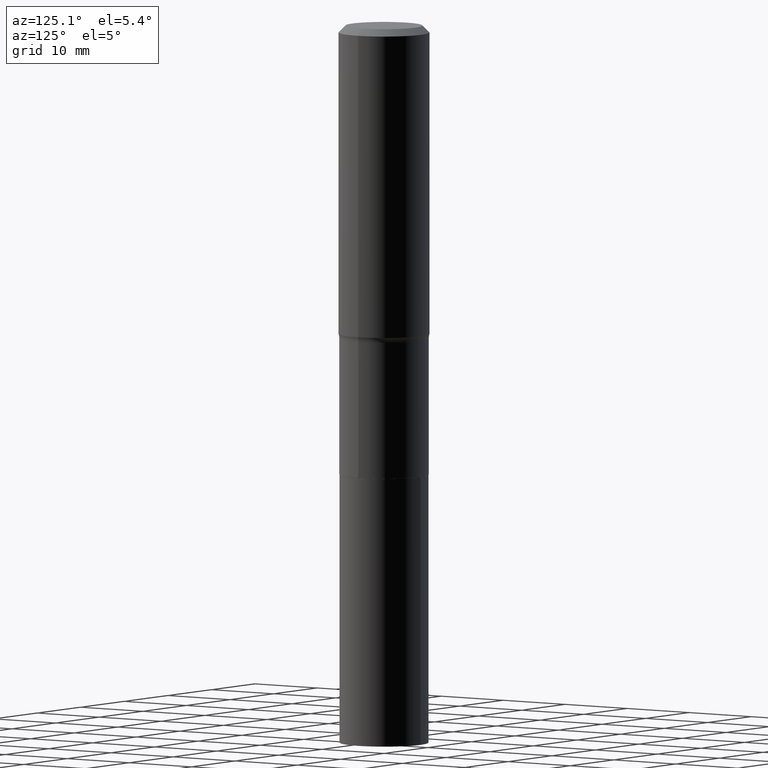
[diagram: clean part render]
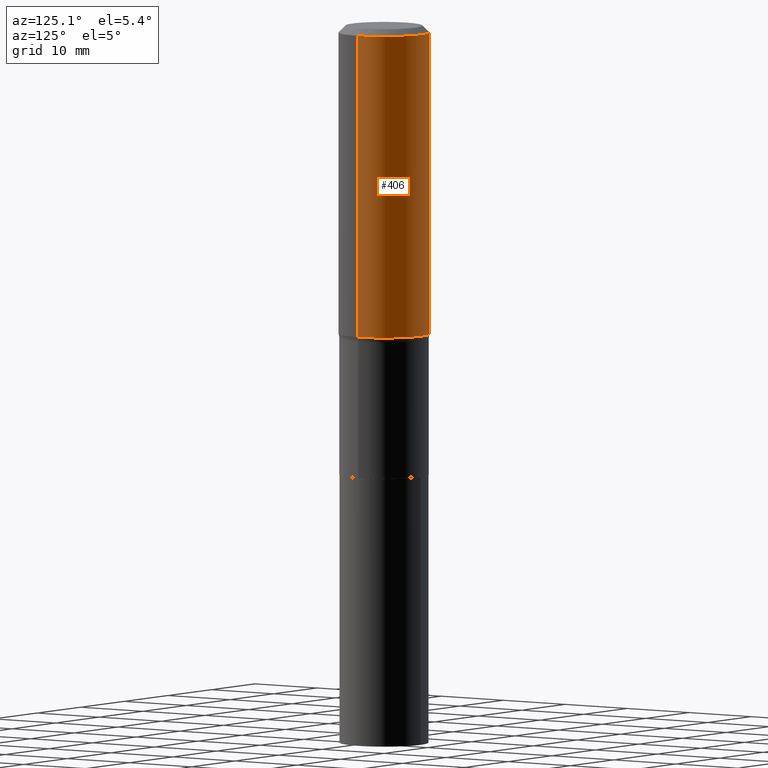
[diagram: same view with one face highlighted and labeled with its STEP entity id]
A machine part, auxiliary view. The second image highlights one B-rep face of the part: STEP entity #406.
In plain terms, the highlighted cylindrical surface (partial cylindrical patch) has radius 5.9995 mm, axis along (-0, 0, 1).
Its self-contained STEP definition (entity closure, byte-faithful):
#22 = CARTESIAN_POINT ( 'NONE',  ( 0.2362000000000001043, -1.649375784469496920E-15, 1.151752954443000508E-29 ) ) ;
#50 = CARTESIAN_POINT ( 'NONE',  ( -0.2361999999999999933, -1.190397463391202039E-15, -0.03543000000000024602 ) ) ;
#57 = VECTOR ( 'NONE', #281, 39.37007874015748143 ) ;
#70 = CARTESIAN_POINT ( 'NONE',  ( 3.931889135345447533E-29, -5.613695626677905258E-15, -1.607826329823067724 ) ) ;
#78 = EDGE_CURVE ( 'NONE', #206, #387, #458, .T. ) ;
#83 = VECTOR ( 'NONE', #174, 39.37007874015748143 ) ;
#87 = EDGE_CURVE ( 'NONE', #455, #260, #141, .T. ) ;
#114 = AXIS2_PLACEMENT_3D ( 'NONE', #159, #450, #208 ) ;
#130 = CARTESIAN_POINT ( 'NONE',  ( -0.2362000000000002153, -3.935393684812547286E-15, -1.607826329823067724 ) ) ;
#141 = CIRCLE ( 'NONE', #148, 0.2361999999999999933 ) ;
#148 = AXIS2_PLACEMENT_3D ( 'NONE', #357, #160, #254 ) ;
#159 = CARTESIAN_POINT ( 'NONE',  ( 0.000000000000000000, 0.000000000000000000, 0.000000000000000000 ) ) ;
#160 = DIRECTION ( 'NONE',  ( -2.445468806185136597E-29, 3.491481338843145583E-15, 1.000000000000000000 ) ) ;
#174 = DIRECTION ( 'NONE',  ( -2.445468806185136877E-29, 3.491481338843145188E-15, 1.000000000000000000 ) ) ;
#206 = VERTEX_POINT ( 'NONE', #383 ) ;
#208 = DIRECTION ( 'NONE',  ( 1.000000000000000000, -6.982962677686266711E-15, 4.876176775795935793E-29 ) ) ;
#210 = LINE ( 'NONE', #22, #83 ) ;
#215 = EDGE_CURVE ( 'NONE', #206, #455, #210, .T. ) ;
#245 = ORIENTED_EDGE ( 'NONE', *, *, #215, .F. ) ;
#252 = ORIENTED_EDGE ( 'NONE', *, *, #434, .T. ) ;
#254 = DIRECTION ( 'NONE',  ( 1.000000000000000000, -6.982962677686266711E-15, 0.000000000000000000 ) ) ;
#260 = VERTEX_POINT ( 'NONE', #50 ) ;
#281 = DIRECTION ( 'NONE',  ( -2.445468806185136877E-29, 3.491481338843145188E-15, 1.000000000000000000 ) ) ;
#285 = EDGE_LOOP ( 'NONE', ( #363, #252, #288, #245 ) ) ;
#288 = ORIENTED_EDGE ( 'NONE', *, *, #87, .F. ) ;
#304 = AXIS2_PLACEMENT_3D ( 'NONE', #70, #354, #411 ) ;
#343 = CARTESIAN_POINT ( 'NONE',  ( 0.2361999999999999933, -1.773078968304709711E-15, -0.03543000000000024602 ) ) ;
#354 = DIRECTION ( 'NONE',  ( -2.445468806185136597E-29, 3.491481338843145583E-15, 1.000000000000000000 ) ) ;
#357 = CARTESIAN_POINT ( 'NONE',  ( 8.664295980313998742E-31, -1.237031838352135065E-16, -0.03543000000000024602 ) ) ;
#363 = ORIENTED_EDGE ( 'NONE', *, *, #78, .T. ) ;
#375 = LINE ( 'NONE', #444, #57 ) ;
#383 = CARTESIAN_POINT ( 'NONE',  ( 0.2362000000000002153, -7.263071411147402572E-15, -1.607826329823067724 ) ) ;
#387 = VERTEX_POINT ( 'NONE', #130 ) ;
#406 = ADVANCED_FACE ( 'NONE', ( #454 ), #420, .T. ) ;
#411 = DIRECTION ( 'NONE',  ( 1.000000000000000000, -6.982962677686266711E-15, 0.000000000000000000 ) ) ;
#420 = CYLINDRICAL_SURFACE ( 'NONE', #114, 0.2362000000000001043 ) ;
#434 = EDGE_CURVE ( 'NONE', #387, #260, #375, .T. ) ;
#444 = CARTESIAN_POINT ( 'NONE',  ( -0.2362000000000001043, 1.678301941865357380E-15, -1.161852468318209317E-29 ) ) ;
#450 = DIRECTION ( 'NONE',  ( -2.445468806185136597E-29, 3.491481338843145583E-15, 1.000000000000000000 ) ) ;
#454 = FACE_OUTER_BOUND ( 'NONE', #285, .T. ) ;
#455 = VERTEX_POINT ( 'NONE', #343 ) ;
#458 = CIRCLE ( 'NONE', #304, 0.2362000000000002153 ) ;